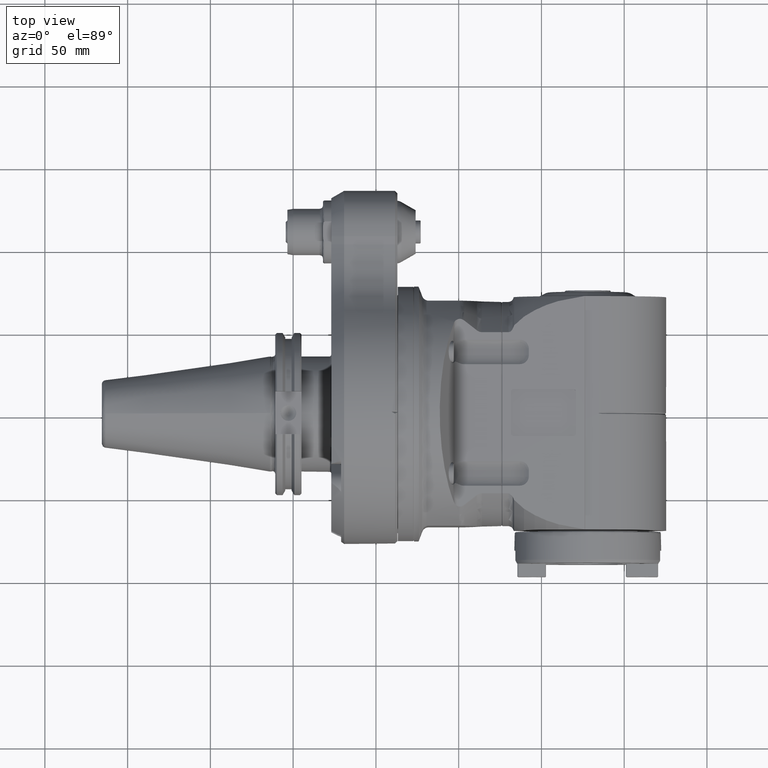
[diagram: clean part render]
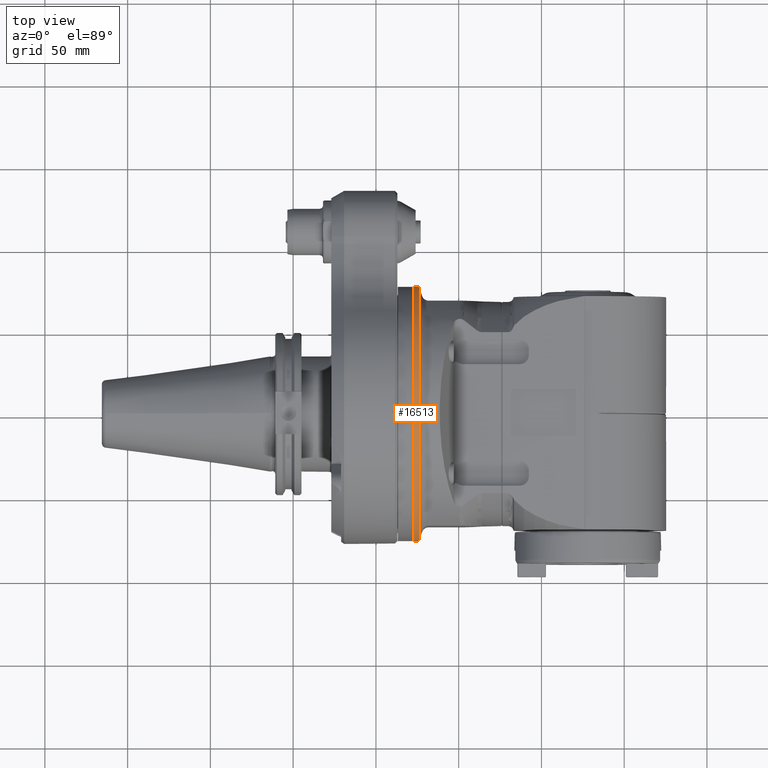
[diagram: same view with one face highlighted and labeled with its STEP entity id]
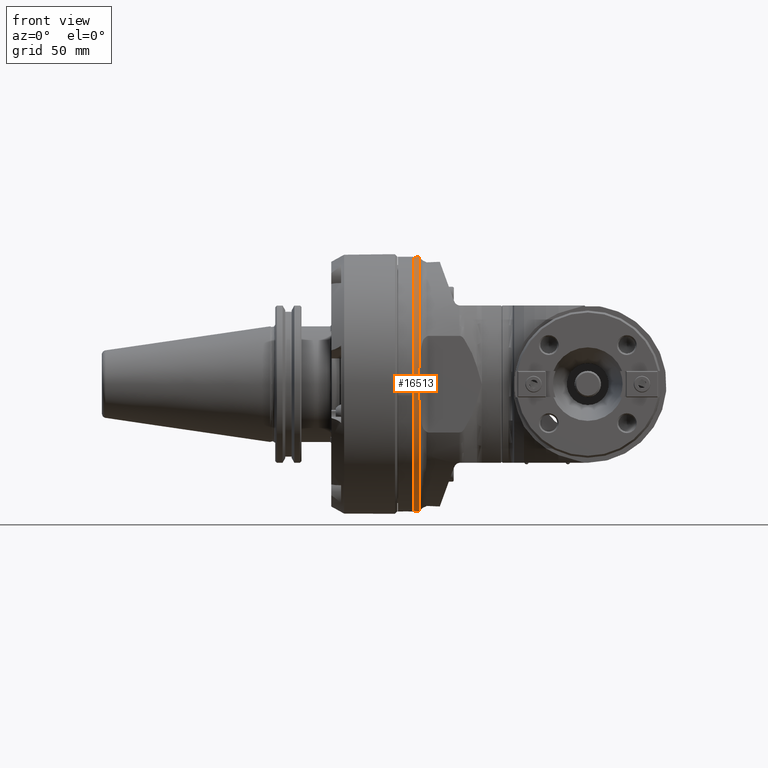
[diagram: same view with one face highlighted and labeled with its STEP entity id]
A machine part, top view. The second image highlights one B-rep face of the part: STEP entity #16513.
A second angle (front view) of the same face is appended — the face is thin or edge-on in the first view.
In plain terms, the highlighted cylindrical surface (bore or boss wall) has radius 77 mm, axis along (-1, 0, 0).
Its self-contained STEP definition (entity closure, byte-faithful):
#47=ELLIPSE('',#18120,81.9416884806462,77.);
#48=ELLIPSE('',#18121,81.9416884806462,77.);
#52=ELLIPSE('',#18130,81.9416884806462,77.);
#1743=FACE_OUTER_BOUND('',#2673,.T.);
#2673=EDGE_LOOP('',(#13090,#13091,#13092,#13093,#13094,#13095,#13096,#13097));
#3707=LINE('',#40565,#4930);
#4930=VECTOR('',#21570,77.);
#6058=CIRCLE('',#18126,77.);
#6060=CIRCLE('',#18133,77.);
#6061=CIRCLE('',#18136,77.);
#7223=VERTEX_POINT('',#40526);
#7224=VERTEX_POINT('',#40528);
#7225=VERTEX_POINT('',#40530);
#7228=VERTEX_POINT('',#40546);
#7229=VERTEX_POINT('',#40550);
#7231=VERTEX_POINT('',#40563);
#9335=EDGE_CURVE('',#7223,#7224,#47,.T.);
#9336=EDGE_CURVE('',#7224,#7225,#48,.T.);
#9341=EDGE_CURVE('',#7225,#7228,#6058,.T.);
#9345=EDGE_CURVE('',#7228,#7229,#52,.T.);
#9347=EDGE_CURVE('',#7229,#7223,#6060,.T.);
#9348=EDGE_CURVE('',#7231,#7231,#6061,.T.);
#9349=EDGE_CURVE('',#7231,#7224,#3707,.T.);
#13090=ORIENTED_EDGE('',*,*,#9348,.F.);
#13091=ORIENTED_EDGE('',*,*,#9349,.T.);
#13092=ORIENTED_EDGE('',*,*,#9335,.F.);
#13093=ORIENTED_EDGE('',*,*,#9347,.F.);
#13094=ORIENTED_EDGE('',*,*,#9345,.F.);
#13095=ORIENTED_EDGE('',*,*,#9341,.F.);
#13096=ORIENTED_EDGE('',*,*,#9336,.F.);
#13097=ORIENTED_EDGE('',*,*,#9349,.F.);
#15040=CYLINDRICAL_SURFACE('',#18135,77.);
#16513=ADVANCED_FACE('',(#1743),#15040,.T.);
#18120=AXIS2_PLACEMENT_3D('',#40529,#21536,#21537);
#18121=AXIS2_PLACEMENT_3D('',#40531,#21538,#21539);
#18126=AXIS2_PLACEMENT_3D('',#40547,#21548,#21549);
#18130=AXIS2_PLACEMENT_3D('',#40557,#21556,#21557);
#18133=AXIS2_PLACEMENT_3D('',#40560,#21562,#21563);
#18135=AXIS2_PLACEMENT_3D('',#40562,#21566,#21567);
#18136=AXIS2_PLACEMENT_3D('',#40564,#21568,#21569);
#21536=DIRECTION('center_axis',(0.939692620785897,-0.342020143325699,0.));
#21537=DIRECTION('ref_axis',(0.342020143325699,0.939692620785897,0.));
#21538=DIRECTION('center_axis',(0.939692620785897,-0.342020143325699,0.));
#21539=DIRECTION('ref_axis',(0.342020143325699,0.939692620785897,0.));
#21548=DIRECTION('center_axis',(1.,0.,0.));
#21549=DIRECTION('ref_axis',(0.,-0.990161457900833,-0.139929579745305));
#21556=DIRECTION('center_axis',(0.939692620785897,0.342020143325699,0.));
#21557=DIRECTION('ref_axis',(-0.342020143325699,0.939692620785897,0.));
#21562=DIRECTION('center_axis',(1.,0.,0.));
#21563=DIRECTION('ref_axis',(0.,0.990161457900833,0.139929579745305));
#21566=DIRECTION('center_axis',(-1.,0.,0.));
#21567=DIRECTION('ref_axis',(0.,1.,0.));
#21568=DIRECTION('center_axis',(-1.,0.,0.));
#21569=DIRECTION('ref_axis',(0.,-0.737520564389613,0.675324675324712));
#21570=DIRECTION('',(1.,0.,0.));
#40526=CARTESIAN_POINT('',(-9.,-76.24243225836,10.77457764039));
#40528=CARTESIAN_POINT('',(-9.27573210839615,-77.,9.42978035343462E-15));
#40529=CARTESIAN_POINT('Origin',(18.7499759301042,0.,0.));
#40530=CARTESIAN_POINT('',(-9.,-76.24243225836,-10.77457764039));
#40531=CARTESIAN_POINT('Origin',(18.7499759301042,0.,0.));
#40546=CARTESIAN_POINT('',(-9.,76.24243225836,-10.77457764039));
#40547=CARTESIAN_POINT('Origin',(-9.,0.,0.));
#40550=CARTESIAN_POINT('',(-9.,76.24243225836,10.77457764039));
#40557=CARTESIAN_POINT('Origin',(18.749975930102,0.,0.));
#40560=CARTESIAN_POINT('Origin',(-9.,0.,0.));
#40562=CARTESIAN_POINT('Origin',(-11.,0.,0.));
#40563=CARTESIAN_POINT('',(-12.,-77.,9.42978035343462E-15));
#40564=CARTESIAN_POINT('Origin',(-12.,0.,0.));
#40565=CARTESIAN_POINT('',(-11.,-77.,9.42978035343462E-15));